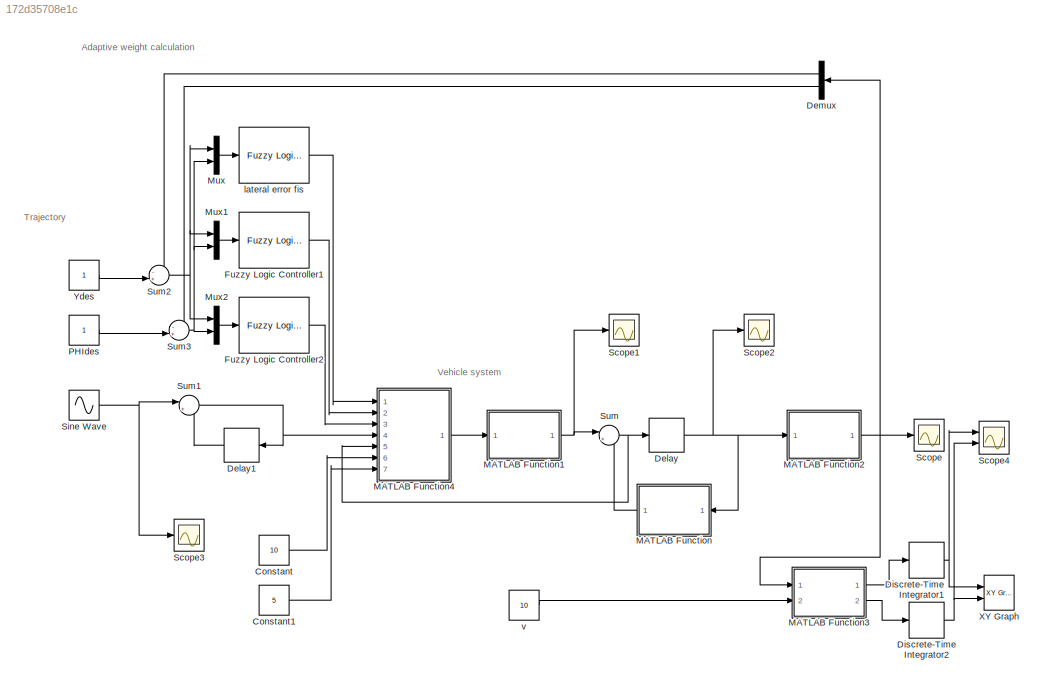
MODEL slx_172d35708e1c
KIND model
CONFIG AbsTol = auto
CONFIG EnableMultiTasking = off
CONFIG FixedStep = 0.01
CONFIG MaxStep = auto
CONFIG MinStep = auto
CONFIG RelTol = 1e-3
CONFIG SampleTimeConstraint = Unconstrained
CONFIG Solver = FixedStepAuto
CONFIG SolverName = FixedStepAuto
CONFIG StartTime = 0.0
CONFIG StopTime = 10.0
BLOCK [Constant] Constant
  Value = 10
BLOCK [Constant] Constant1
  Value = 5
BLOCK [Delay] Delay
  DelayLength = 1
  InputPortMap = u0
  Ports = [1, 1]
  SampleTime = 0.01
BLOCK [Delay] Delay1
  DelayLength = 1
  InputPortMap = u0
  Ports = [1, 1]
  SampleTime = 0.01
BLOCK [Demux] Demux
  DisplayOption = bar
  Outputs = 2
  Ports = [1, 2]
BLOCK [DiscreteIntegrator] Discrete-Time Integrator1
  ICPrevOutput = DiscIntNeverNeededParam
  ICPrevScaledInput = DiscIntNeverNeededParam
  InitialConditionSetting = Auto
  Ports = [1, 1]
  SampleTime = 0.01
BLOCK [DiscreteIntegrator] Discrete-Time Integrator2
  ICPrevOutput = DiscIntNeverNeededParam
  ICPrevScaledInput = DiscIntNeverNeededParam
  InitialConditionSetting = Auto
  Ports = [1, 1]
  SampleTime = 0.01
BLOCK [Reference] Fuzzy Logic Controller1  REF=fuzblock/Fuzzy Logic   (lib defined in mdl_858b3b3e7478)
Controller
  Ports = [1, 1]
  SourceBlock = fuzblock/Fuzzy Logic \nController
  SourceProductBaseCode = FL
  SourceProductName = Fuzzy Logic Toolbox
  SourceType = Fuzzy Inference System
BLOCK [Reference] Fuzzy Logic Controller2  REF=fuzblock/Fuzzy Logic   (lib defined in mdl_858b3b3e7478)
Controller
  Ports = [1, 1]
  SourceBlock = fuzblock/Fuzzy Logic \nController
  SourceProductBaseCode = FL
  SourceProductName = Fuzzy Logic Toolbox
  SourceType = Fuzzy Inference System
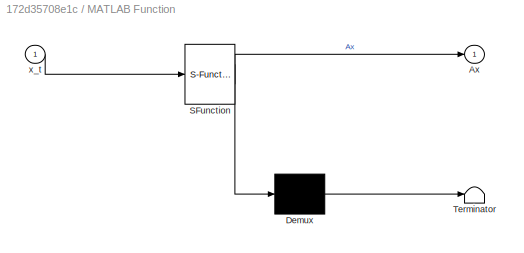
BLOCK [SubSystem] MATLAB Function
  ErrorFcn = Stateflow.Translate.translate
  PermitHierarchicalResolution = ExplicitOnly
  Ports = [1, 1]
  RequestExecContextInheritance = off
  SFBlockType = MATLAB Function
  TreatAsAtomicUnit = on
BLOCK [Demux] MATLAB Function/ Demux 
  Outputs = 1
  Ports = [1, 1]
BLOCK [S-Function] MATLAB Function/ SFunction 
  EnableBusSupport = on
  FunctionName = sf_sfun
  PortCounts = [1 2]
  Ports = [1, 2]
  SFcnIsStateOwnerBlock = off
  SFunctionDeploymentMode = off
  Tag = Stateflow S-Function 2
BLOCK [Terminator] MATLAB Function/ Terminator 
BLOCK [Outport] MATLAB Function/Ax
  IconDisplay = Port number
BLOCK [Inport] MATLAB Function/x_t
  IconDisplay = Port number
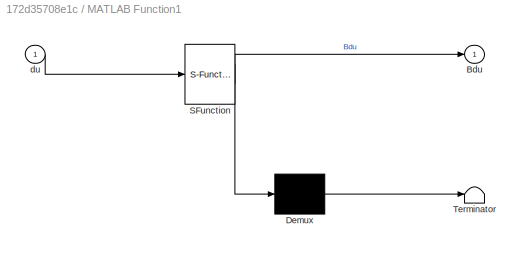
BLOCK [SubSystem] MATLAB Function1
  ErrorFcn = Stateflow.Translate.translate
  PermitHierarchicalResolution = ExplicitOnly
  Ports = [1, 1]
  RequestExecContextInheritance = off
  SFBlockType = MATLAB Function
  TreatAsAtomicUnit = on
BLOCK [Demux] MATLAB Function1/ Demux 
  Outputs = 1
  Ports = [1, 1]
BLOCK [S-Function] MATLAB Function1/ SFunction 
  EnableBusSupport = on
  FunctionName = sf_sfun
  PortCounts = [1 2]
  Ports = [1, 2]
  SFcnIsStateOwnerBlock = off
  SFunctionDeploymentMode = off
  Tag = Stateflow S-Function 1
BLOCK [Terminator] MATLAB Function1/ Terminator 
BLOCK [Outport] MATLAB Function1/Bdu
  IconDisplay = Port number
BLOCK [Inport] MATLAB Function1/du
  IconDisplay = Port number
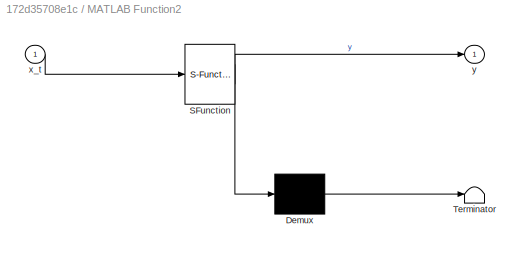
BLOCK [SubSystem] MATLAB Function2
  ErrorFcn = Stateflow.Translate.translate
  PermitHierarchicalResolution = ExplicitOnly
  Ports = [1, 1]
  RequestExecContextInheritance = off
  SFBlockType = MATLAB Function
  TreatAsAtomicUnit = on
BLOCK [Demux] MATLAB Function2/ Demux 
  Outputs = 1
  Ports = [1, 1]
BLOCK [S-Function] MATLAB Function2/ SFunction 
  EnableBusSupport = on
  FunctionName = sf_sfun
  PortCounts = [1 2]
  Ports = [1, 2]
  SFcnIsStateOwnerBlock = off
  SFunctionDeploymentMode = off
  Tag = Stateflow S-Function 3
BLOCK [Terminator] MATLAB Function2/ Terminator 
BLOCK [Inport] MATLAB Function2/x_t
  IconDisplay = Port number
BLOCK [Outport] MATLAB Function2/y
  IconDisplay = Port number
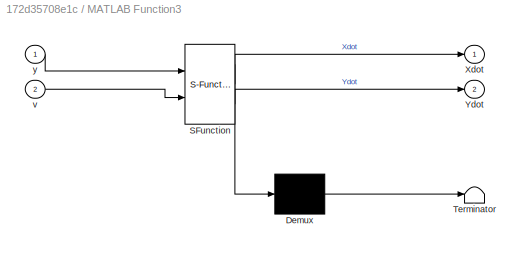
BLOCK [SubSystem] MATLAB Function3
  ErrorFcn = Stateflow.Translate.translate
  PermitHierarchicalResolution = ExplicitOnly
  Ports = [2, 2]
  RequestExecContextInheritance = off
  SFBlockType = MATLAB Function
  TreatAsAtomicUnit = on
BLOCK [Demux] MATLAB Function3/ Demux 
  Outputs = 1
  Ports = [1, 1]
BLOCK [S-Function] MATLAB Function3/ SFunction 
  EnableBusSupport = on
  FunctionName = sf_sfun
  PortCounts = [2 3]
  Ports = [2, 3]
  SFcnIsStateOwnerBlock = off
  SFunctionDeploymentMode = off
  Tag = Stateflow S-Function 4
BLOCK [Terminator] MATLAB Function3/ Terminator 
BLOCK [Outport] MATLAB Function3/Xdot
  IconDisplay = Port number
BLOCK [Outport] MATLAB Function3/Ydot
  IconDisplay = Port number
  Port = 2
BLOCK [Inport] MATLAB Function3/v
  IconDisplay = Port number
  Port = 2
BLOCK [Inport] MATLAB Function3/y
  IconDisplay = Port number
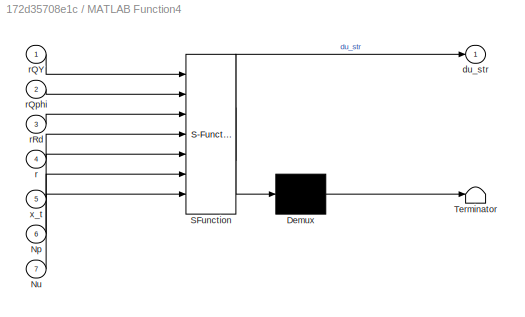
BLOCK [SubSystem] MATLAB Function4
  ErrorFcn = Stateflow.Translate.translate
  PermitHierarchicalResolution = ExplicitOnly
  Ports = [7, 1]
  RequestExecContextInheritance = off
  SFBlockType = MATLAB Function
  TreatAsAtomicUnit = on
BLOCK [Demux] MATLAB Function4/ Demux 
  Outputs = 1
  Ports = [1, 1]
BLOCK [S-Function] MATLAB Function4/ SFunction 
  EnableBusSupport = on
  FunctionName = sf_sfun
  PortCounts = [7 2]
  Ports = [7, 2]
  SFcnIsStateOwnerBlock = off
  SFunctionDeploymentMode = off
  Tag = Stateflow S-Function 5
BLOCK [Terminator] MATLAB Function4/ Terminator 
BLOCK [Inport] MATLAB Function4/Np
  IconDisplay = Port number
  Port = 6
BLOCK [Inport] MATLAB Function4/Nu
  IconDisplay = Port number
  Port = 7
BLOCK [Outport] MATLAB Function4/du_str
  IconDisplay = Port number
BLOCK [Inport] MATLAB Function4/r
  IconDisplay = Port number
  Port = 4
BLOCK [Inport] MATLAB Function4/rQY
  IconDisplay = Port number
BLOCK [Inport] MATLAB Function4/rQphi
  IconDisplay = Port number
  Port = 2
BLOCK [Inport] MATLAB Function4/rRd
  IconDisplay = Port number
  Port = 3
BLOCK [Inport] MATLAB Function4/x_t
  IconDisplay = Port number
  Port = 5
BLOCK [Mux] Mux
  DisplayOption = bar
  Inputs = 2
  Ports = [2, 1]
BLOCK [Mux] Mux1
  DisplayOption = bar
  Inputs = 2
  Ports = [2, 1]
BLOCK [Mux] Mux2
  DisplayOption = bar
  Inputs = 2
  Ports = [2, 1]
BLOCK [Constant] PHIdes
BLOCK [Scope] Scope
  Floating = off
  NumInputPorts = 1
  Ports = [1]
  ScopeSpecificationString = Simulink.scopes.TimeScopeBlockCfg('CurrentConfiguration', extmgr.ConfigurationSet(extmgr.Configuration('Core','General UI',true),extmgr.Configuration('Core','Source UI',true),extmgr.Configuration('Sources','WiredSimulink',true),extmgr.Configuration('Visuals','Time Domain',true,'SerializedDisplays',{struct('MinYLimReal','-15.5185','MaxYLimReal','139.66653','YLabelReal','','MinYLimMag','0.00000','Ma...<+1355ch>
BLOCK [Scope] Scope1
  Floating = off
  NumInputPorts = 1
  Ports = [1]
  ScopeSpecificationString = Simulink.scopes.TimeScopeBlockCfg('CurrentConfiguration', extmgr.ConfigurationSet(extmgr.Configuration('Core','General UI',true),extmgr.Configuration('Core','Source UI',true),extmgr.Configuration('Sources','WiredSimulink',true,'DataLoggingVariableName','ScopeData1'),extmgr.Configuration('Visuals','Time Domain',true,'SerializedDisplays',{struct('MinYLimReal','-0.04397','MaxYLimReal','0.04397','YLab...<+1386ch>
BLOCK [Scope] Scope2
  Floating = off
  NumInputPorts = 1
  Ports = [1]
  ScopeSpecificationString = Simulink.scopes.TimeScopeBlockCfg('CurrentConfiguration', extmgr.ConfigurationSet(extmgr.Configuration('Core','General UI',true),extmgr.Configuration('Core','Source UI',true),extmgr.Configuration('Sources','WiredSimulink',true,'DataLoggingVariableName','ScopeData2'),extmgr.Configuration('Visuals','Time Domain',true,'SerializedDisplays',{struct('MinYLimReal','-15.5897','MaxYLimReal','139.42047','YL...<+1413ch>
BLOCK [Scope] Scope3
  Floating = off
  NumInputPorts = 1
  Ports = [1]
  ScopeSpecificationString = Simulink.scopes.TimeScopeBlockCfg('CurrentConfiguration', extmgr.ConfigurationSet(extmgr.Configuration('Core','General UI',true),extmgr.Configuration('Core','Source UI',true),extmgr.Configuration('Sources','WiredSimulink',true,'DataLoggingVariableName','ScopeData3'),extmgr.Configuration('Visuals','Time Domain',true,'SerializedDisplays',{struct('MinYLimReal','-0.0875','MaxYLimReal','0.0875','YLabel...<+1379ch>
BLOCK [Scope] Scope4
  Floating = off
  NumInputPorts = 2
  Ports = [2]
  ScopeSpecificationString = Simulink.scopes.TimeScopeBlockCfg('CurrentConfiguration', extmgr.ConfigurationSet(extmgr.Configuration('Core','General UI',true),extmgr.Configuration('Core','Source UI',true),extmgr.Configuration('Sources','WiredSimulink',true,'DataLoggingVariableName','ScopeData4'),extmgr.Configuration('Visuals','Time Domain',true,'SerializedDisplays',{struct('MinYLimReal','-33.26467','MaxYLimReal','117.36565','Y...<+1447ch>
BLOCK [Sin] Sine Wave
  Amplitude = 0.07
  Ports = [0, 1]
  SampleTime = 0.01
BLOCK [Sum] Sum
  IconShape = round
  InputSameDT = off
  Inputs = |++
  OutDataTypeStr = Inherit: Inherit via internal rule
  Ports = [2, 1]
  SaturateOnIntegerOverflow = off
BLOCK [Sum] Sum1
  IconShape = round
  InputSameDT = off
  Inputs = |+-
  OutDataTypeStr = Inherit: Inherit via internal rule
  Ports = [2, 1]
  SaturateOnIntegerOverflow = off
BLOCK [Sum] Sum2
  IconShape = round
  InputSameDT = off
  Inputs = -+|
  OutDataTypeStr = Inherit: Inherit via internal rule
  Ports = [2, 1]
  SaturateOnIntegerOverflow = off
BLOCK [Sum] Sum3
  IconShape = round
  InputSameDT = off
  Inputs = -+|
  OutDataTypeStr = Inherit: Inherit via internal rule
  Ports = [2, 1]
  SaturateOnIntegerOverflow = off
BLOCK [Reference] XY Graph  REF=simulink/Sinks/XY Graph
  Ports = [2]
  SourceBlock = simulink/Sinks/XY Graph
  SourceProductBaseCode = SL
  SourceProductName = Simulink
  SourceType = XY scope.
BLOCK [Constant] Ydes
BLOCK [Reference] lateral error fis  REF=fuzblock/Fuzzy Logic   (lib defined in mdl_858b3b3e7478)
Controller
  Ports = [1, 1]
  SourceBlock = fuzblock/Fuzzy Logic \nController
  SourceProductBaseCode = FL
  SourceProductName = Fuzzy Logic Toolbox
  SourceType = Fuzzy Inference System
BLOCK [Constant] v
  Value = 10
ANNOTATION (root): Adaptive weight calculation
ANNOTATION (root): Trajectory
ANNOTATION (root): Vehicle system
LINE Constant1:1 -> MATLAB Function4:7
LINE Constant:1 -> MATLAB Function4:6
LINE Delay1:1 -> Sum1:2
NET Delay:1 -> MATLAB Function2:1, MATLAB Function:1, Scope2:1
LINE Demux:1 -> Sum2:1
LINE Demux:2 -> Sum3:1
NET Discrete-Time Integrator1:1 -> Scope4:1, XY Graph:1
NET Discrete-Time Integrator2:1 -> Scope4:2, XY Graph:2
LINE Fuzzy Logic Controller1:1 -> MATLAB Function4:2
LINE Fuzzy Logic Controller2:1 -> MATLAB Function4:3
NET MATLAB Function1:1 -> Scope1:1, Sum:1
NET MATLAB Function2:1 -> Demux:1, MATLAB Function3:1, Scope:1
LINE MATLAB Function3:1 -> Discrete-Time Integrator1:1
LINE MATLAB Function3:2 -> Discrete-Time Integrator2:1
LINE MATLAB Function4:1 -> MATLAB Function1:1
LINE MATLAB Function:1 -> Sum:2
LINE Mux1:1 -> Fuzzy Logic Controller1:1
LINE Mux2:1 -> Fuzzy Logic Controller2:1
LINE Mux:1 -> lateral error fis:1
LINE PHIdes:1 -> Sum3:2
NET Sine Wave:1 -> Scope3:1, Sum1:1
NET Sum1:1 -> Delay1:1, MATLAB Function4:4
NET Sum2:1 -> Mux1:1, Mux2:1, Mux:1
NET Sum3:1 -> Mux1:2, Mux2:2, Mux:2
NET Sum:1 -> Delay:1, MATLAB Function4:5
LINE Ydes:1 -> Sum2:2
LINE lateral error fis:1 -> MATLAB Function4:1
LINE v:1 -> MATLAB Function3:2
note: NET lines group one-source signal fan-out (src -> all destinations, sorted); 1:1 wires keep LINE
CHART MATLAB Function1 states=1 transitions=1
  STATE_LABEL 'eML_blk_kernel()'
  STATE_LABEL 'SCRIPT:\nfunction Bdu = Bmat(du)\n\n% m = 1350; % kg\n% lf = 1.016; % m\n% Iz = 4000; % kg.m^2\n% Cf = 87594; % N/rad\n\n% dt = 0.1\n% B = [0.204160750073782\n%     3.22429376254482\n%     0.0952067310058050\n%     1.74510127293309];\n\n% dt = 0.01\n\nB_k = [0.00308538121733195\n    0.601722163601119\n    0.00109699431148174\n    0.217836958427102];\n\nB_t = [B_k;1];\n\nBdu = B_t*du;\n'
CHART MATLAB Function states=1 transitions=1
  STATE_LABEL 'eML_blk_kernel()'
  STATE_LABEL 'SCRIPT:\nfunction Ax = Amat(x_t)\n\n% m = 1350; % kg\n% lf = 1.016; % m\n% lr = 1.562; % m\n% Iz = 4000; % kg.m^2\n% Cf = 87594; % N/rad\n% Cr = 87594; % N/rad\n\n% dt = 0.1\n% A = [1,0.0554395351293068,0,-0.0167590342351909\n%     0,0.260529237543850,0,-0.230564952320616\n%     0,0.00310316170359759,1,0.0693857231158054\n%     0,0.0426922172359289,0,0.452396031479352];\n\n% dt = 0.01\n\nA_k = [1,0.0093771512189401...<+322ch>'
CHART MATLAB Function2 states=1 transitions=1
  STATE_LABEL 'eML_blk_kernel()'
  STATE_LABEL 'SCRIPT:\nfunction y = Cmat(x_t)\n\nC_k = [1, 0, 0, 0\n    0, 0, 1, 0];\n\nC_t = [C_k, zeros(2,1)];\n\ny = C_t*x_t;\n'
CHART MATLAB Function3 states=1 transitions=1
  STATE_LABEL 'eML_blk_kernel()'
  STATE_LABEL 'SCRIPT:\nfunction [Xdot, Ydot] = CmatXY(y,v)\n\nydot = y(1);\nphi = y(2);\n\nYdot = sin(phi)*v+cos(phi)*ydot;\nXdot = cos(phi)*v-sin(phi)*ydot;\n'
CHART MATLAB Function4 states=1 transitions=1
  STATE_LABEL 'eML_blk_kernel()'
  STATE_LABEL 'SCRIPT:\nfunction du_str = MPC(rQY,rQphi,rRd,r,x_t,Np,Nu)\n\nA_k = [1,0.00937715121894016,0,-0.000301547085405976\n    0,0.877953203322308,0,-0.0582583895552142\n    0,5.58355185705388e-05,1,0.00962808646263230\n    0,0.0107873282460033,0,0.926433470211531];\n    \nB_k = [0.00308538121733195\n    0.601722163601119\n    0.00109699431148174\n    0.217836958427102];\n\nC_k = [1, 0, 0, 0\n    0, 0, 1, 0];\n\nA_t = [A...<+473ch>'
